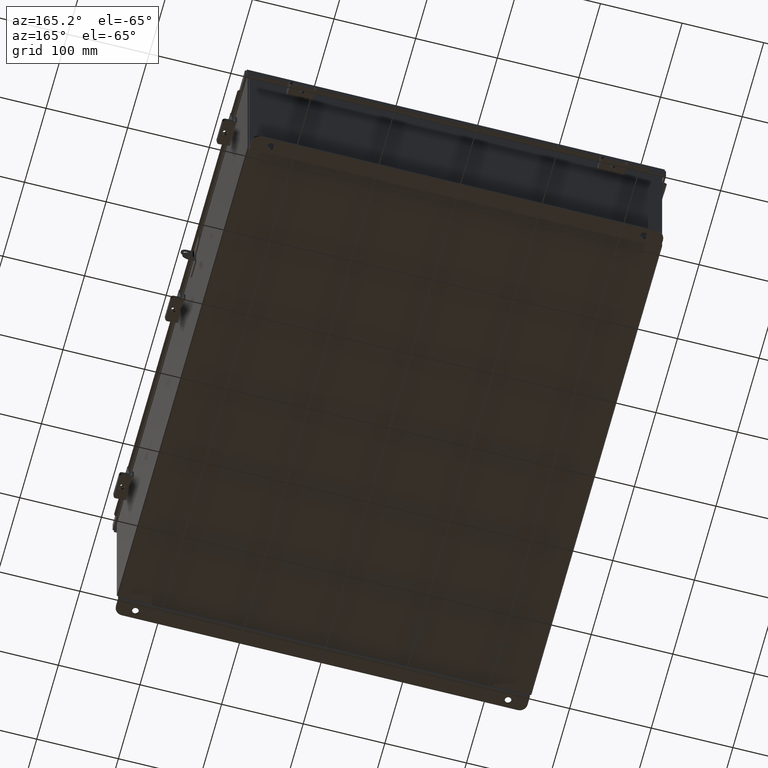
[diagram: clean part render]
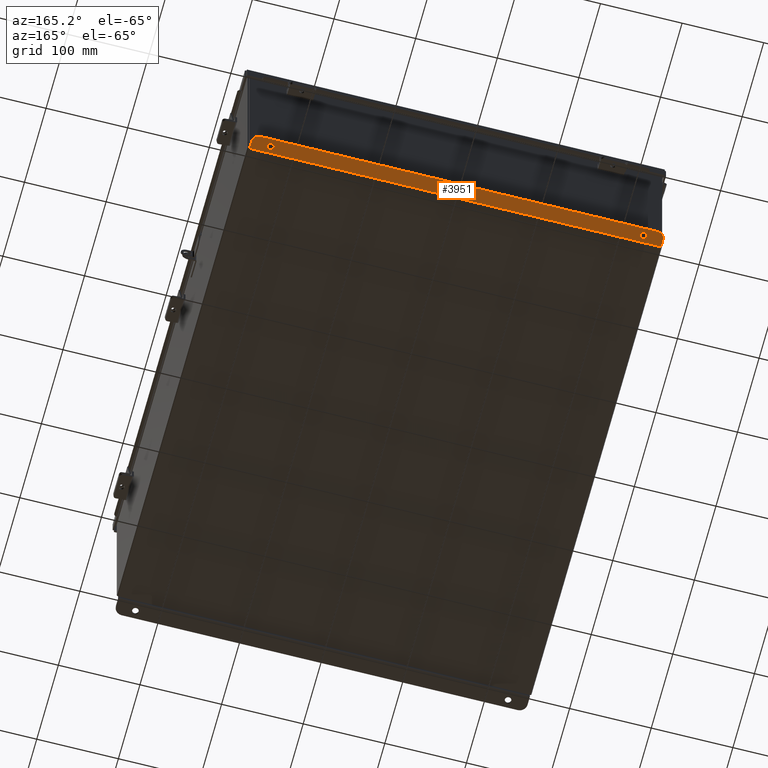
[diagram: same view with one face highlighted and labeled with its STEP entity id]
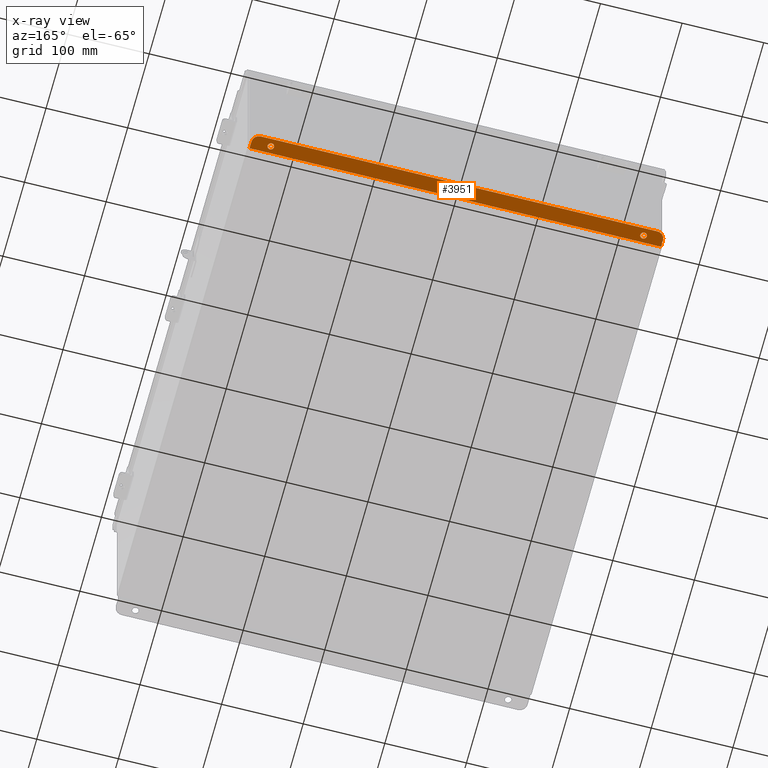
[diagram: x-ray of the same camera — body ghosted, the highlighted face saturated]
A machine part, auxiliary view. The second image highlights one B-rep face of the part: STEP entity #3951.
The next image is the same camera in x-ray: the body ghosted, the highlighted face saturated — about 0% of this face is hidden behind the body in this view.
In plain terms, the highlighted planar face has unit normal (0, 0, 1).
Its self-contained STEP definition (entity closure, byte-faithful):
#31 = AXIS2_PLACEMENT_3D ( 'NONE', #1633, #1554, #1304 ) ;
#594 = CIRCLE ( 'NONE', #6454, 0.3750000000000000600 ) ;
#632 = CARTESIAN_POINT ( 'NONE',  ( -9.550300000000001800, 0.7377999999999989000, -4.187000000000003800 ) ) ;
#1065 = CARTESIAN_POINT ( 'NONE',  ( 0.0000000000000000000, 0.7377999999999989000, -4.187000000000003800 ) ) ;
#1099 = DIRECTION ( 'NONE',  ( 1.000000000000000000, 0.0000000000000000000, -0.0000000000000000000 ) ) ;
#1304 = DIRECTION ( 'NONE',  ( 0.0000000000000000000, 1.000000000000000000, -3.502369222646487000E-015 ) ) ;
#1477 = CARTESIAN_POINT ( 'NONE',  ( 9.925299999999998200, 0.01300000000000010700, -4.187000000000001200 ) ) ;
#1554 = DIRECTION ( 'NONE',  ( 0.0000000000000000000, -3.702694488566362300E-015, -1.000000000000000000 ) ) ;
#1633 = CARTESIAN_POINT ( 'NONE',  ( -8.987800000000000000, 0.3628000000000008400, -4.187000000000002100 ) ) ;
#2232 = VECTOR ( 'NONE', #1099, 39.37007874015748100 ) ;
#2272 = AXIS2_PLACEMENT_3D ( 'NONE', #22110, #22090, #22028 ) ;
#2366 = LINE ( 'NONE', #1065, #2232 ) ;
#2414 = DIRECTION ( 'NONE',  ( 0.0000000000000000000, -1.000000000000000000, 4.370956789862820400E-015 ) ) ;
#2552 = CARTESIAN_POINT ( 'NONE',  ( 9.550299999999998200, 0.3628000000000008400, -4.187000000000002100 ) ) ;
#2571 = DIRECTION ( 'NONE',  ( -0.0000000000000000000, -3.702694488566362300E-015, -1.000000000000000000 ) ) ;
#3209 = EDGE_CURVE ( 'NONE', #21902, #3347, #6920, .T. ) ;
#3347 = VERTEX_POINT ( 'NONE', #1477 ) ;
#3614 = ORIENTED_EDGE ( 'NONE', *, *, #6072, .T. ) ;
#3951 = ADVANCED_FACE ( 'NONE', ( #18723, #18661, #18412 ), #19165, .F. ) ;
#5335 = VERTEX_POINT ( 'NONE', #23263 ) ;
#5934 = AXIS2_PLACEMENT_3D ( 'NONE', #10446, #19758, #23173 ) ;
#5941 = CARTESIAN_POINT ( 'NONE',  ( 8.987799999999998200, 0.2068000000000006800, -4.187000000000001200 ) ) ;
#6072 = EDGE_CURVE ( 'NONE', #5335, #17529, #594, .T. ) ;
#6134 = EDGE_CURVE ( 'NONE', #24189, #21988, #24764, .T. ) ;
#6354 = VECTOR ( 'NONE', #7040, 39.37007874015748100 ) ;
#6454 = AXIS2_PLACEMENT_3D ( 'NONE', #2552, #2571, #2414 ) ;
#6866 = AXIS2_PLACEMENT_3D ( 'NONE', #13195, #13113, #12961 ) ;
#6920 = LINE ( 'NONE', #12537, #6354 ) ;
#7040 = DIRECTION ( 'NONE',  ( 1.000000000000000000, 2.752408485047568600E-017, -1.019132772786892100E-031 ) ) ;
#7740 = ORIENTED_EDGE ( 'NONE', *, *, #22399, .F. ) ;
#7765 = CIRCLE ( 'NONE', #31, 0.1560000000000001900 ) ;
#8032 = EDGE_LOOP ( 'NONE', ( #22954, #11752 ) ) ;
#8617 = CARTESIAN_POINT ( 'NONE',  ( 9.925299999999998200, -1.529834876451987200E-014, -4.187000000000001200 ) ) ;
#9228 = ORIENTED_EDGE ( 'NONE', *, *, #13041, .F. ) ;
#9593 = VERTEX_POINT ( 'NONE', #22440 ) ;
#9672 = DIRECTION ( 'NONE',  ( 0.0000000000000000000, 3.702694488566362300E-015, 1.000000000000000000 ) ) ;
#10339 = DIRECTION ( 'NONE',  ( 0.0000000000000000000, -1.000000000000000000, 3.702694488566362300E-015 ) ) ;
#10392 = CARTESIAN_POINT ( 'NONE',  ( -8.987800000000000000, 0.2068000000000006800, -4.187000000000001200 ) ) ;
#10446 = CARTESIAN_POINT ( 'NONE',  ( 8.987799999999998200, 0.3628000000000008400, -4.187000000000002100 ) ) ;
#10653 = CIRCLE ( 'NONE', #2272, 0.1560000000000001900 ) ;
#10847 = ORIENTED_EDGE ( 'NONE', *, *, #16130, .T. ) ;
#11752 = ORIENTED_EDGE ( 'NONE', *, *, #6134, .F. ) ;
#11817 = EDGE_LOOP ( 'NONE', ( #22027, #3614, #22649, #22282, #22927, #10847 ) ) ;
#12537 = CARTESIAN_POINT ( 'NONE',  ( 9.925299999999998200, 0.01300000000000010700, -4.187000000000001200 ) ) ;
#12625 = CARTESIAN_POINT ( 'NONE',  ( 0.0000000000000000000, -1.529834876451987200E-014, -4.187000000000001200 ) ) ;
#12912 = DIRECTION ( 'NONE',  ( 0.0000000000000000000, -1.000000000000000000, 3.702694488566362300E-015 ) ) ;
#12961 = DIRECTION ( 'NONE',  ( 0.0000000000000000000, -1.000000000000000000, 4.370956789862820400E-015 ) ) ;
#13041 = EDGE_CURVE ( 'NONE', #15415, #16181, #7765, .T. ) ;
#13113 = DIRECTION ( 'NONE',  ( -0.0000000000000000000, -3.702694488566362300E-015, -1.000000000000000000 ) ) ;
#13195 = CARTESIAN_POINT ( 'NONE',  ( -9.550300000000001800, 0.3628000000000008400, -4.187000000000002100 ) ) ;
#14409 = VECTOR ( 'NONE', #15597, 39.37007874015748100 ) ;
#14435 = LINE ( 'NONE', #15778, #14409 ) ;
#15415 = VERTEX_POINT ( 'NONE', #21003 ) ;
#15597 = DIRECTION ( 'NONE',  ( 0.0000000000000000000, 1.000000000000000000, -3.702694488566362300E-015 ) ) ;
#15778 = CARTESIAN_POINT ( 'NONE',  ( -9.925300000000001800, -1.529834876451987200E-014, -4.187000000000001200 ) ) ;
#16010 = AXIS2_PLACEMENT_3D ( 'NONE', #16743, #16713, #16693 ) ;
#16130 = EDGE_CURVE ( 'NONE', #9593, #16356, #16543, .T. ) ;
#16181 = VERTEX_POINT ( 'NONE', #10392 ) ;
#16356 = VERTEX_POINT ( 'NONE', #632 ) ;
#16543 = CIRCLE ( 'NONE', #6866, 0.3750000000000000600 ) ;
#16668 = EDGE_CURVE ( 'NONE', #21902, #9593, #14435, .T. ) ;
#16693 = DIRECTION ( 'NONE',  ( 0.0000000000000000000, 1.000000000000000000, -3.502369222646487000E-015 ) ) ;
#16713 = DIRECTION ( 'NONE',  ( 0.0000000000000000000, -3.702694488566362300E-015, -1.000000000000000000 ) ) ;
#16743 = CARTESIAN_POINT ( 'NONE',  ( -8.987800000000000000, 0.3628000000000008400, -4.187000000000002100 ) ) ;
#16970 = CIRCLE ( 'NONE', #16010, 0.1560000000000001900 ) ;
#17529 = VERTEX_POINT ( 'NONE', #19028 ) ;
#18412 = FACE_OUTER_BOUND ( 'NONE', #11817, .T. ) ;
#18661 = FACE_BOUND ( 'NONE', #8032, .T. ) ;
#18723 = FACE_BOUND ( 'NONE', #22904, .T. ) ;
#18848 = AXIS2_PLACEMENT_3D ( 'NONE', #12625, #9672, #12912 ) ;
#19028 = CARTESIAN_POINT ( 'NONE',  ( 9.925299999999998200, 0.3628000000000008400, -4.187000000000002100 ) ) ;
#19165 = PLANE ( 'NONE',  #18848 ) ;
#19758 = DIRECTION ( 'NONE',  ( 0.0000000000000000000, -3.702694488566362300E-015, -1.000000000000000000 ) ) ;
#19789 = EDGE_CURVE ( 'NONE', #16356, #5335, #2366, .T. ) ;
#19885 = VECTOR ( 'NONE', #10339, 39.37007874015748100 ) ;
#19933 = LINE ( 'NONE', #8617, #19885 ) ;
#21003 = CARTESIAN_POINT ( 'NONE',  ( -8.987800000000000000, 0.5188000000000010400, -4.187000000000002900 ) ) ;
#21652 = EDGE_CURVE ( 'NONE', #17529, #3347, #19933, .T. ) ;
#21902 = VERTEX_POINT ( 'NONE', #24012 ) ;
#21988 = VERTEX_POINT ( 'NONE', #22702 ) ;
#22027 = ORIENTED_EDGE ( 'NONE', *, *, #19789, .T. ) ;
#22028 = DIRECTION ( 'NONE',  ( 0.0000000000000000000, 1.000000000000000000, -3.502369222646487000E-015 ) ) ;
#22090 = DIRECTION ( 'NONE',  ( 0.0000000000000000000, -3.702694488566362300E-015, -1.000000000000000000 ) ) ;
#22110 = CARTESIAN_POINT ( 'NONE',  ( 8.987799999999998200, 0.3628000000000008400, -4.187000000000002100 ) ) ;
#22282 = ORIENTED_EDGE ( 'NONE', *, *, #3209, .F. ) ;
#22399 = EDGE_CURVE ( 'NONE', #16181, #15415, #16970, .T. ) ;
#22440 = CARTESIAN_POINT ( 'NONE',  ( -9.925300000000001800, 0.3628000000000008400, -4.187000000000002100 ) ) ;
#22649 = ORIENTED_EDGE ( 'NONE', *, *, #21652, .T. ) ;
#22702 = CARTESIAN_POINT ( 'NONE',  ( 8.987799999999998200, 0.5188000000000010400, -4.187000000000002900 ) ) ;
#22904 = EDGE_LOOP ( 'NONE', ( #9228, #7740 ) ) ;
#22927 = ORIENTED_EDGE ( 'NONE', *, *, #16668, .T. ) ;
#22954 = ORIENTED_EDGE ( 'NONE', *, *, #23905, .F. ) ;
#23173 = DIRECTION ( 'NONE',  ( 0.0000000000000000000, 1.000000000000000000, -3.502369222646487000E-015 ) ) ;
#23263 = CARTESIAN_POINT ( 'NONE',  ( 9.550299999999998200, 0.7377999999999989000, -4.187000000000003800 ) ) ;
#23905 = EDGE_CURVE ( 'NONE', #21988, #24189, #10653, .T. ) ;
#24012 = CARTESIAN_POINT ( 'NONE',  ( -9.925300000000000000, 0.01300000000000010700, -4.187000000000001200 ) ) ;
#24189 = VERTEX_POINT ( 'NONE', #5941 ) ;
#24764 = CIRCLE ( 'NONE', #5934, 0.1560000000000001900 ) ;